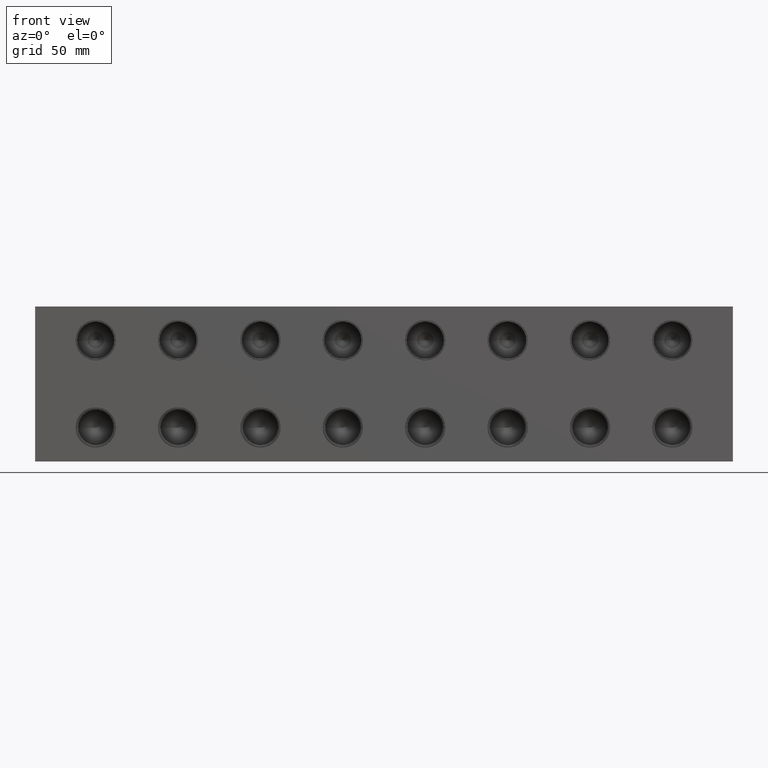
[diagram: clean part render]
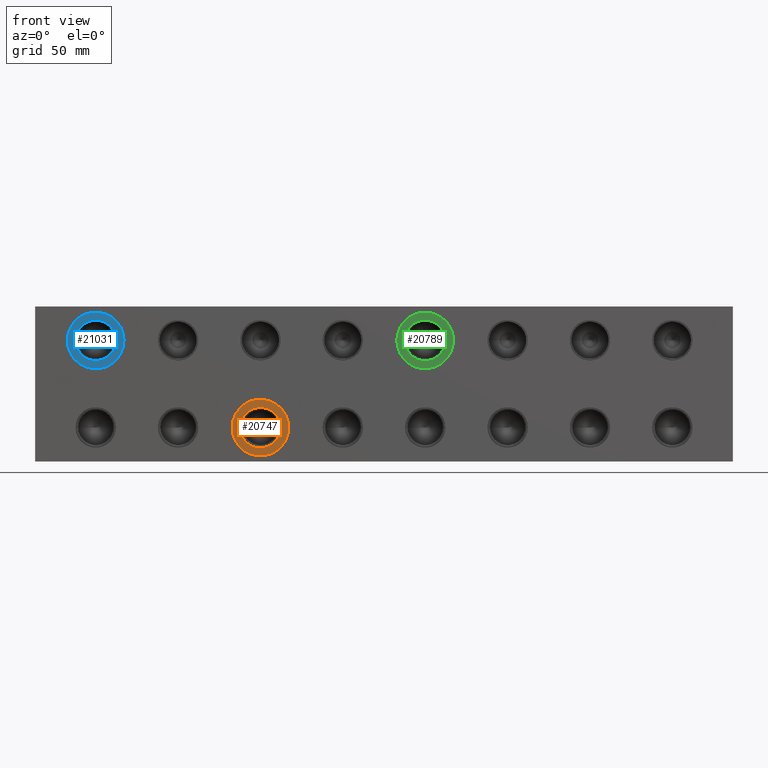
[diagram: same view with three faces highlighted in distinct colors, each labeled with its STEP entity id]
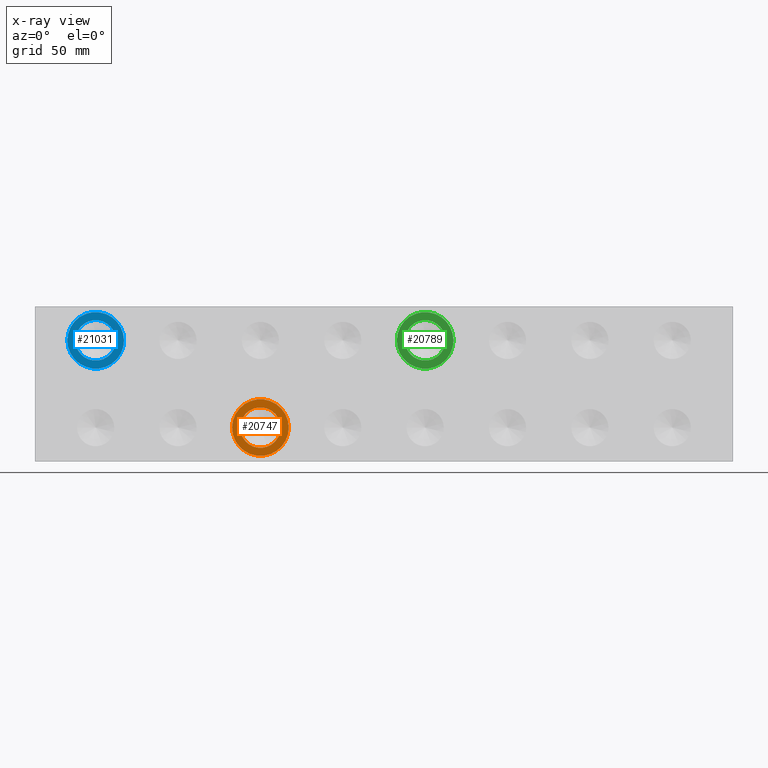
[diagram: x-ray of the same camera — body ghosted, the three highlighted faces saturated]
A machine part, front view with three faces highlighted in distinct colors.
The next image is the same camera in x-ray (body ghosted, the three faces saturated) — at least one of them is partly hidden behind the body in this view.
Their STEP definitions:

[orange] entity #20747 — the highlighted planar face has unit normal (0, 1, 0).
#631=CIRCLE('',#21690,18.5547);
#632=CIRCLE('',#21691,18.5547);
#633=CIRCLE('',#21693,13.2715);
#634=CIRCLE('',#21694,13.2715);
#1859=FACE_BOUND('',#3927,.T.);
#2724=FACE_OUTER_BOUND('',#3926,.T.);
#3926=EDGE_LOOP('',(#16838,#16839));
#3927=EDGE_LOOP('',(#16840,#16841));
#9265=VERTEX_POINT('',#34758);
#9266=VERTEX_POINT('',#34760);
#9267=VERTEX_POINT('',#34764);
#9268=VERTEX_POINT('',#34765);
#11992=EDGE_CURVE('',#9265,#9266,#631,.T.);
#11993=EDGE_CURVE('',#9266,#9265,#632,.T.);
#11994=EDGE_CURVE('',#9267,#9268,#633,.T.);
#11995=EDGE_CURVE('',#9268,#9267,#634,.T.);
#16838=ORIENTED_EDGE('',*,*,#11993,.F.);
#16839=ORIENTED_EDGE('',*,*,#11992,.F.);
#16840=ORIENTED_EDGE('',*,*,#11994,.T.);
#16841=ORIENTED_EDGE('',*,*,#11995,.T.);
#19276=PLANE('',#21692);
#20747=ADVANCED_FACE('',(#2724,#1859),#19276,.F.);
#21690=AXIS2_PLACEMENT_3D('',#34761,#25256,#25257);
#21691=AXIS2_PLACEMENT_3D('',#34762,#25258,#25259);
#21692=AXIS2_PLACEMENT_3D('',#34763,#25260,#25261);
#21693=AXIS2_PLACEMENT_3D('',#34766,#25262,#25263);
#21694=AXIS2_PLACEMENT_3D('',#34767,#25264,#25265);
#25256=DIRECTION('center_axis',(0.,1.,0.));
#25257=DIRECTION('ref_axis',(1.,0.,0.));
#25258=DIRECTION('center_axis',(0.,1.,0.));
#25259=DIRECTION('ref_axis',(1.,0.,0.));
#25260=DIRECTION('center_axis',(0.,1.,0.));
#25261=DIRECTION('ref_axis',(0.,0.,1.));
#25262=DIRECTION('center_axis',(0.,1.,0.));
#25263=DIRECTION('ref_axis',(1.,0.,0.));
#25264=DIRECTION('center_axis',(0.,1.,0.));
#25265=DIRECTION('ref_axis',(1.,0.,0.));
#34758=CARTESIAN_POINT('',(129.0701,0.7874,22.225));
#34760=CARTESIAN_POINT('',(166.1795,0.7874,22.225));
#34761=CARTESIAN_POINT('Origin',(147.6248,0.7874,22.225));
#34762=CARTESIAN_POINT('Origin',(147.6248,0.7874,22.225));
#34763=CARTESIAN_POINT('Origin',(160.8963,0.7874,22.225));
#34764=CARTESIAN_POINT('',(160.8963,0.7874,22.225));
#34765=CARTESIAN_POINT('',(134.3533,0.7874,22.225));
#34766=CARTESIAN_POINT('Origin',(147.6248,0.7874,22.225));
#34767=CARTESIAN_POINT('Origin',(147.6248,0.7874,22.225));

[blue] entity #21031 — the highlighted planar face has unit normal (0, 1, 0).
#1107=CIRCLE('',#22450,18.5547);
#1108=CIRCLE('',#22451,18.5547);
#1109=CIRCLE('',#22453,13.2715);
#1110=CIRCLE('',#22454,13.2715);
#1925=FACE_BOUND('',#4277,.T.);
#3008=FACE_OUTER_BOUND('',#4276,.T.);
#4276=EDGE_LOOP('',(#18199,#18200));
#4277=EDGE_LOOP('',(#18201,#18202));
#9800=VERTEX_POINT('',#36271);
#9801=VERTEX_POINT('',#36273);
#9802=VERTEX_POINT('',#36277);
#9803=VERTEX_POINT('',#36278);
#12686=EDGE_CURVE('',#9800,#9801,#1107,.T.);
#12687=EDGE_CURVE('',#9801,#9800,#1108,.T.);
#12688=EDGE_CURVE('',#9802,#9803,#1109,.T.);
#12689=EDGE_CURVE('',#9803,#9802,#1110,.T.);
#18199=ORIENTED_EDGE('',*,*,#12687,.F.);
#18200=ORIENTED_EDGE('',*,*,#12686,.F.);
#18201=ORIENTED_EDGE('',*,*,#12688,.T.);
#18202=ORIENTED_EDGE('',*,*,#12689,.T.);
#19342=PLANE('',#22452);
#21031=ADVANCED_FACE('',(#3008,#1925),#19342,.F.);
#22450=AXIS2_PLACEMENT_3D('',#36274,#26994,#26995);
#22451=AXIS2_PLACEMENT_3D('',#36275,#26996,#26997);
#22452=AXIS2_PLACEMENT_3D('',#36276,#26998,#26999);
#22453=AXIS2_PLACEMENT_3D('',#36279,#27000,#27001);
#22454=AXIS2_PLACEMENT_3D('',#36280,#27002,#27003);
#26994=DIRECTION('center_axis',(0.,1.,0.));
#26995=DIRECTION('ref_axis',(1.,0.,0.));
#26996=DIRECTION('center_axis',(0.,1.,0.));
#26997=DIRECTION('ref_axis',(1.,0.,0.));
#26998=DIRECTION('center_axis',(0.,1.,0.));
#26999=DIRECTION('ref_axis',(0.,0.,1.));
#27000=DIRECTION('center_axis',(0.,1.,0.));
#27001=DIRECTION('ref_axis',(1.,0.,0.));
#27002=DIRECTION('center_axis',(0.,1.,0.));
#27003=DIRECTION('ref_axis',(1.,0.,0.));
#36271=CARTESIAN_POINT('',(21.1201,0.7874,79.375));
#36273=CARTESIAN_POINT('',(58.2295,0.7874,79.375));
#36274=CARTESIAN_POINT('Origin',(39.6748,0.7874,79.375));
#36275=CARTESIAN_POINT('Origin',(39.6748,0.7874,79.375));
#36276=CARTESIAN_POINT('Origin',(52.9463,0.7874,79.375));
#36277=CARTESIAN_POINT('',(52.9463,0.7874,79.375));
#36278=CARTESIAN_POINT('',(26.4033,0.7874,79.375));
#36279=CARTESIAN_POINT('Origin',(39.6748,0.7874,79.375));
#36280=CARTESIAN_POINT('Origin',(39.6748,0.7874,79.375));

[green] entity #20789 — the highlighted planar face has unit normal (0, 1, 0).
#708=CIRCLE('',#21809,18.5547);
#709=CIRCLE('',#21810,18.5547);
#710=CIRCLE('',#21812,13.2715);
#711=CIRCLE('',#21813,13.2715);
#1873=FACE_BOUND('',#3983,.T.);
#2766=FACE_OUTER_BOUND('',#3982,.T.);
#3982=EDGE_LOOP('',(#17055,#17056));
#3983=EDGE_LOOP('',(#17057,#17058));
#9342=VERTEX_POINT('',#34982);
#9343=VERTEX_POINT('',#34984);
#9344=VERTEX_POINT('',#34988);
#9345=VERTEX_POINT('',#34989);
#12097=EDGE_CURVE('',#9342,#9343,#708,.T.);
#12098=EDGE_CURVE('',#9343,#9342,#709,.T.);
#12099=EDGE_CURVE('',#9344,#9345,#710,.T.);
#12100=EDGE_CURVE('',#9345,#9344,#711,.T.);
#17055=ORIENTED_EDGE('',*,*,#12098,.F.);
#17056=ORIENTED_EDGE('',*,*,#12097,.F.);
#17057=ORIENTED_EDGE('',*,*,#12099,.T.);
#17058=ORIENTED_EDGE('',*,*,#12100,.T.);
#19290=PLANE('',#21811);
#20789=ADVANCED_FACE('',(#2766,#1873),#19290,.F.);
#21809=AXIS2_PLACEMENT_3D('',#34985,#25522,#25523);
#21810=AXIS2_PLACEMENT_3D('',#34986,#25524,#25525);
#21811=AXIS2_PLACEMENT_3D('',#34987,#25526,#25527);
#21812=AXIS2_PLACEMENT_3D('',#34990,#25528,#25529);
#21813=AXIS2_PLACEMENT_3D('',#34991,#25530,#25531);
#25522=DIRECTION('center_axis',(0.,1.,0.));
#25523=DIRECTION('ref_axis',(1.,0.,0.));
#25524=DIRECTION('center_axis',(0.,1.,0.));
#25525=DIRECTION('ref_axis',(1.,0.,0.));
#25526=DIRECTION('center_axis',(0.,1.,0.));
#25527=DIRECTION('ref_axis',(0.,0.,1.));
#25528=DIRECTION('center_axis',(0.,1.,0.));
#25529=DIRECTION('ref_axis',(1.,0.,0.));
#25530=DIRECTION('center_axis',(0.,1.,0.));
#25531=DIRECTION('ref_axis',(1.,0.,0.));
#34982=CARTESIAN_POINT('',(237.0201,0.7874,79.375));
#34984=CARTESIAN_POINT('',(274.1295,0.7874,79.375));
#34985=CARTESIAN_POINT('Origin',(255.5748,0.7874,79.375));
#34986=CARTESIAN_POINT('Origin',(255.5748,0.7874,79.375));
#34987=CARTESIAN_POINT('Origin',(268.8463,0.7874,79.375));
#34988=CARTESIAN_POINT('',(268.8463,0.7874,79.375));
#34989=CARTESIAN_POINT('',(242.3033,0.7874,79.375));
#34990=CARTESIAN_POINT('Origin',(255.5748,0.7874,79.375));
#34991=CARTESIAN_POINT('Origin',(255.5748,0.7874,79.375));